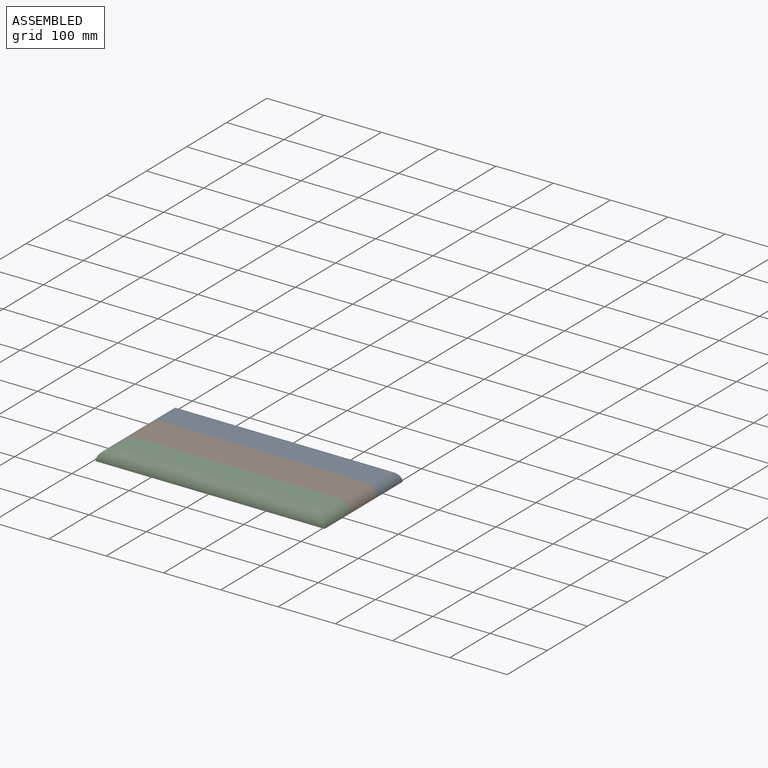
[diagram: assembled view]
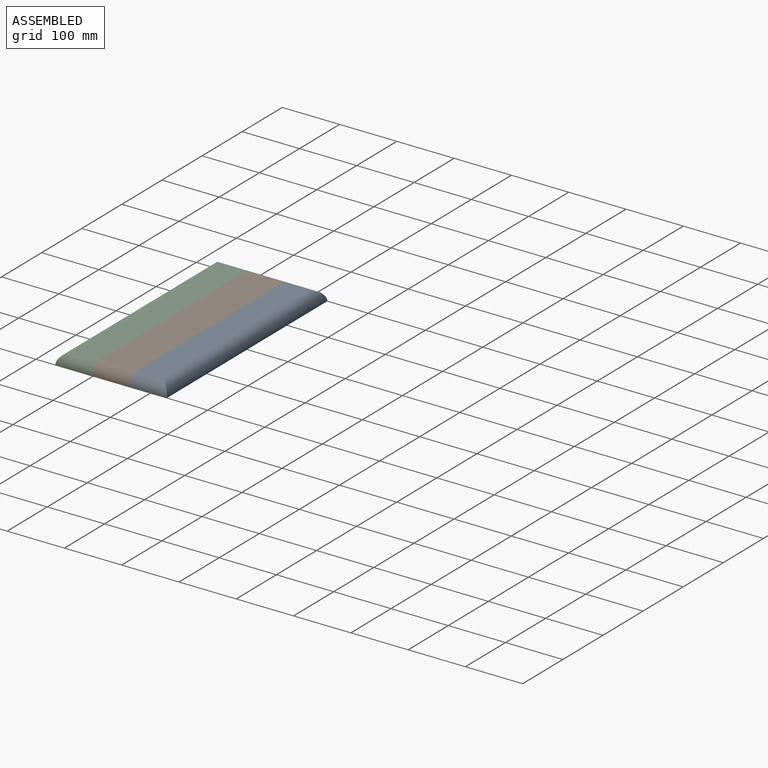
[diagram: assembled view, second angle]
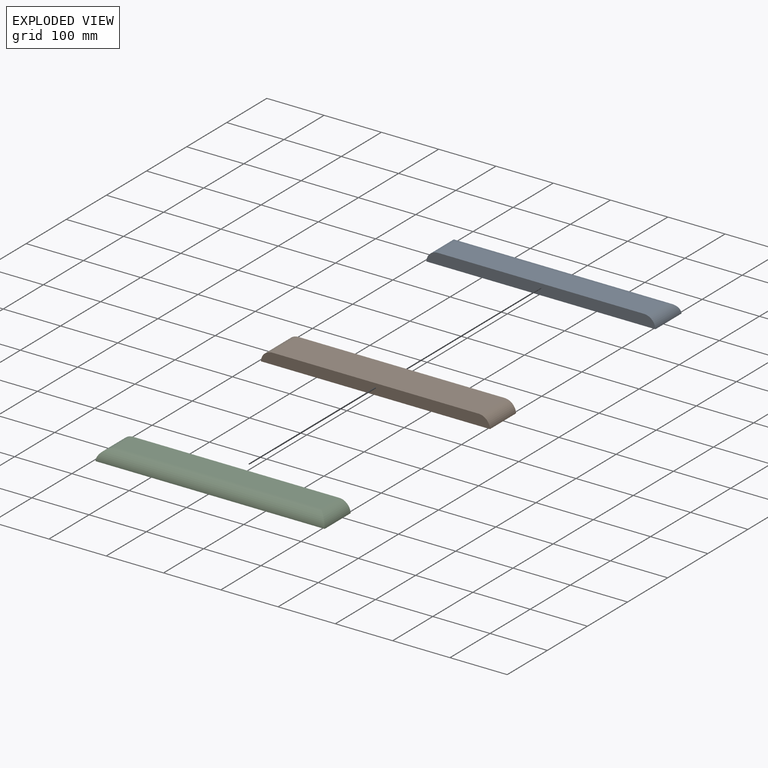
[diagram: exploded view]
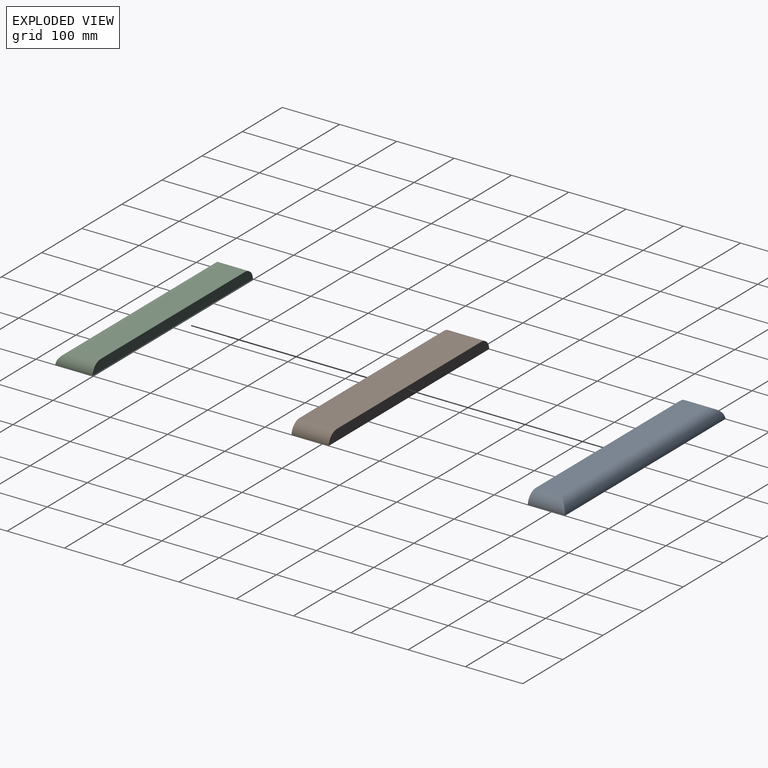
[diagram: exploded view, second angle]
ASSEMBLY  parts=3 mates=2
PART A: 6 faces, bbox 400x65x19 mm
  f0: plane 400x19mm, normal (0,-1,0), area 7429.3mm2, adj f1,f2,f3,f5
  f1: plane 360.05x45.03mm, normal (0,0,1), area 16211.3mm2, adj f0,f3,f4,f5
  f2: plane 400x65mm, normal (0,0,-1), area 26000mm2, adj f0,f3,f4,f5
  f3: cylinder r=20mm len=65mm, axis (0,-1,0), area 1749.5mm2, adj f0,f1,f2,f4
  f4: cylinder r=20mm len=400mm, axis (1,0,0), area 11711.1mm2, adj f1,f2,f3,f5
  f5: cylinder r=20mm len=65mm, axis (0,-1,0), area 1749.5mm2, adj f0,f1,f2,f4
PART B: 6 faces, bbox 400x65x19 mm
  f0: plane 400x19mm, normal (0,-1,0), area 7429.3mm2, adj f2,f3,f4,f5
  f1: plane 400x19mm, normal (0,1,0), area 7429.3mm2, adj f2,f3,f4,f5
  f2: plane 360.05x65mm, normal (0,0,1), area 23403.3mm2, adj f0,f1,f4,f5
  f3: plane 400x65mm, normal (0,0,-1), area 26000mm2, adj f0,f1,f4,f5
  f4: cylinder r=20mm len=65mm, axis (0,1,0), area 1977mm2, adj f0,f1,f2,f3
  f5: cylinder r=20mm len=65mm, axis (0,1,0), area 1977mm2, adj f0,f1,f2,f3
PART C: 6 faces, bbox 400x65x19 mm
  f0: plane 400x19mm, normal (0,1,0), area 7429.3mm2, adj f1,f2,f3,f5
  f1: plane 360.05x45.03mm, normal (0,0,1), area 16211.3mm2, adj f0,f3,f4,f5
  f2: plane 400x65mm, normal (0,0,-1), area 26000mm2, adj f0,f3,f4,f5
  f3: cylinder r=20mm len=65mm, axis (0,1,0), area 1749.5mm2, adj f0,f1,f2,f4
  f4: cylinder r=20mm len=400mm, axis (-1,0,0), area 11711.1mm2, adj f1,f2,f3,f5
  f5: cylinder r=20mm len=65mm, axis (0,1,0), area 1749.5mm2, adj f0,f1,f2,f4
PLACE A t=(-3.46,-163.86,0)mm
PLACE B t=(0.35,-24.46,0)mm
PLACE C at identity
MATE fastened A.f0 <-> B.f1  axis (0,-1,0) through (-88.38,-27.85,9.38)mm
MATE fastened B.f0 <-> C.f0  axis (0,-1,0) through (-88.38,-92.85,9.38)mm
